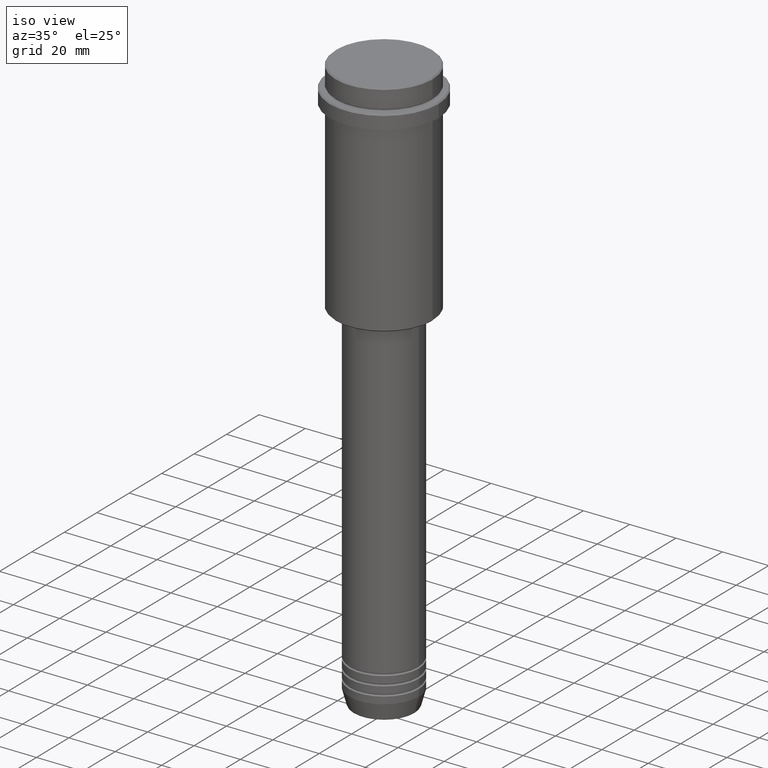
[diagram: clean part render]
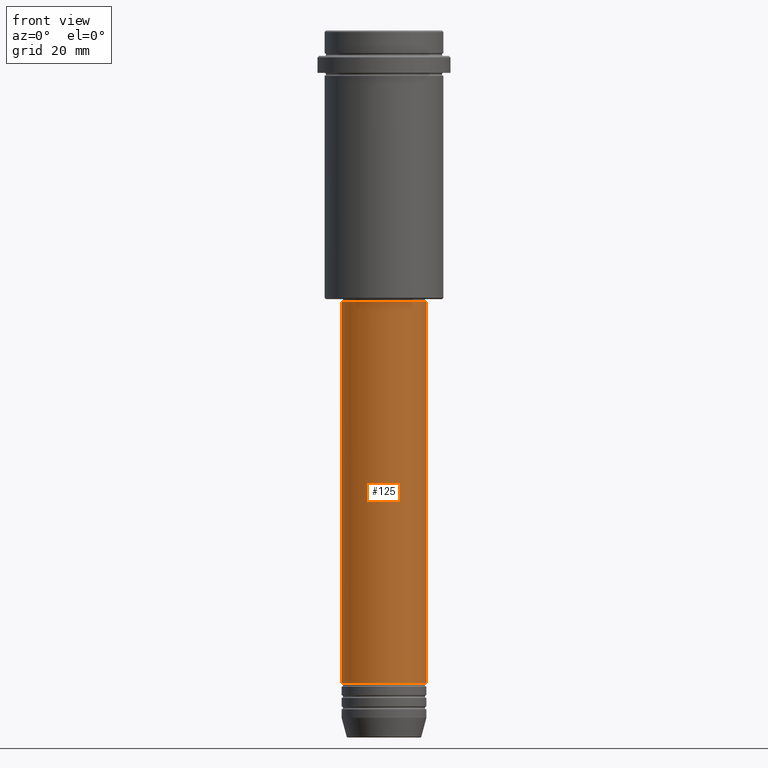
[diagram: tour spotlight — one face highlighted and labeled with its STEP entity id]
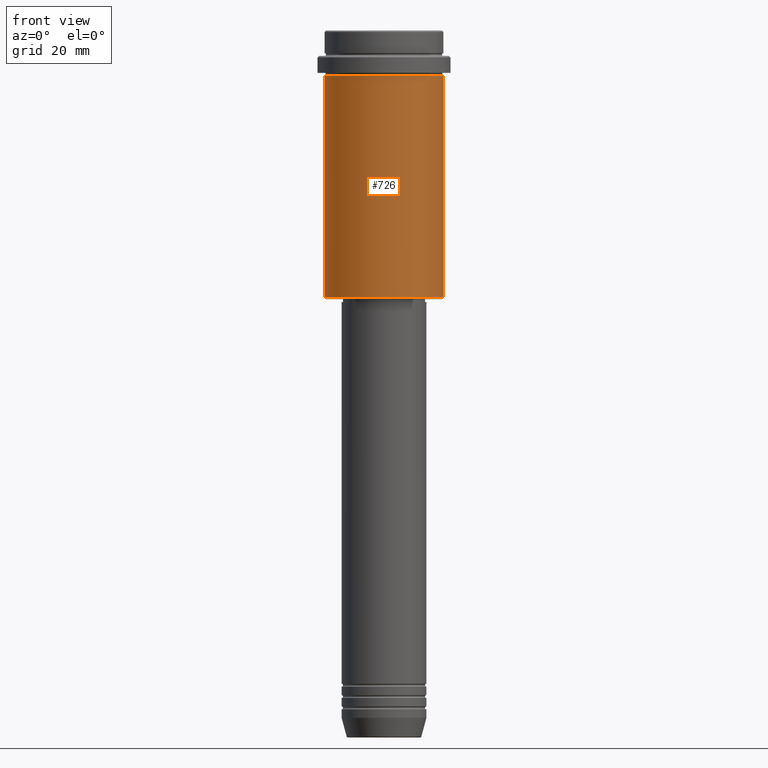
[diagram: tour spotlight — one face highlighted and labeled with its STEP entity id]
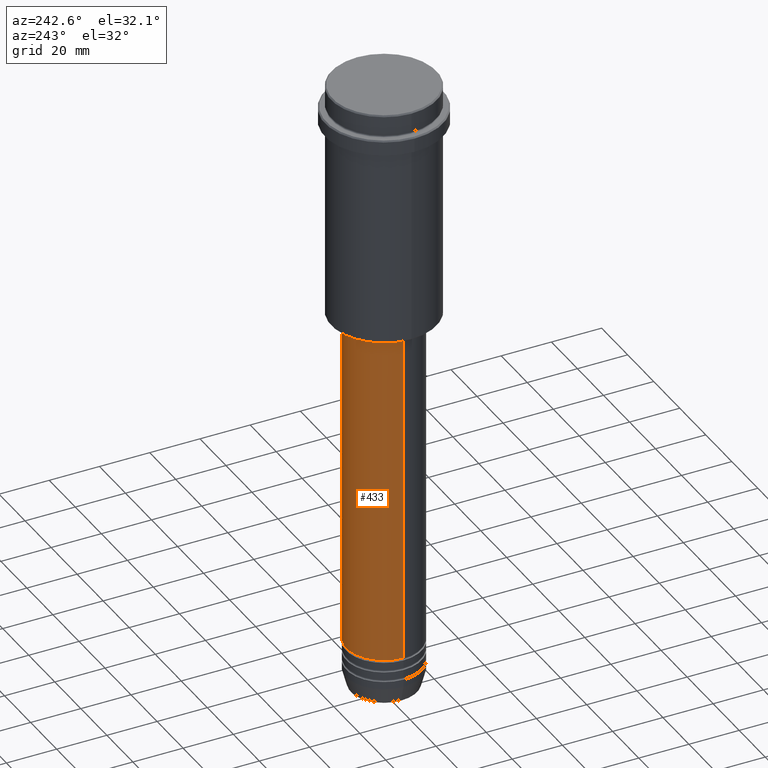
[diagram: tour spotlight — one face highlighted and labeled with its STEP entity id]
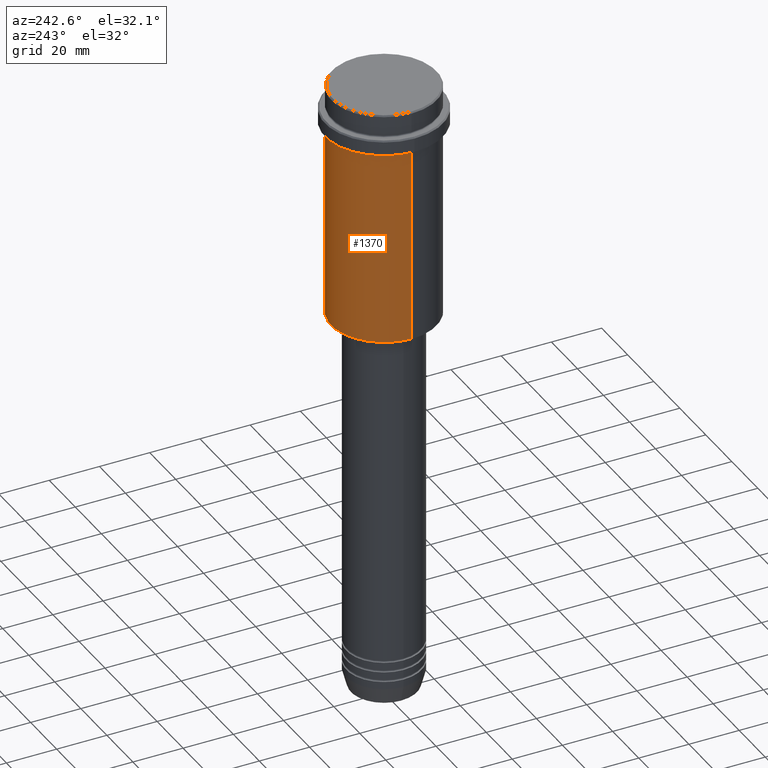
[diagram: tour spotlight — one face highlighted and labeled with its STEP entity id]
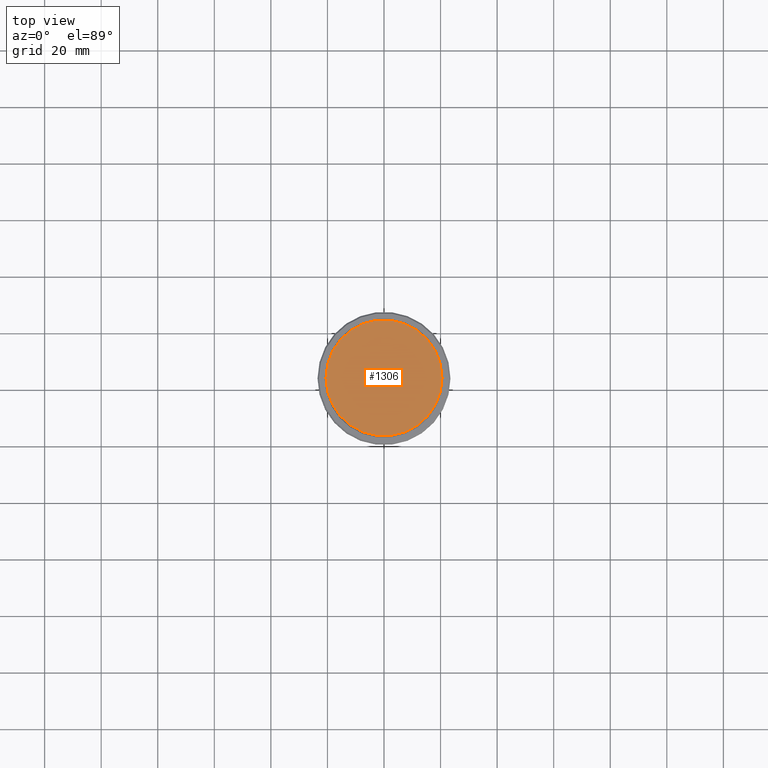
[diagram: tour spotlight — one face highlighted and labeled with its STEP entity id]
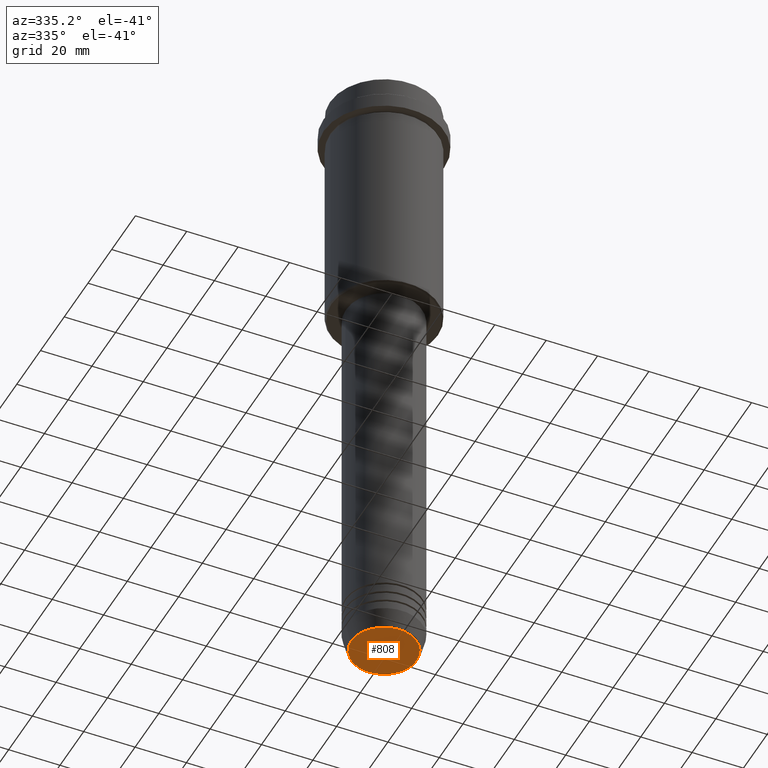
[diagram: tour spotlight — one face highlighted and labeled with its STEP entity id]
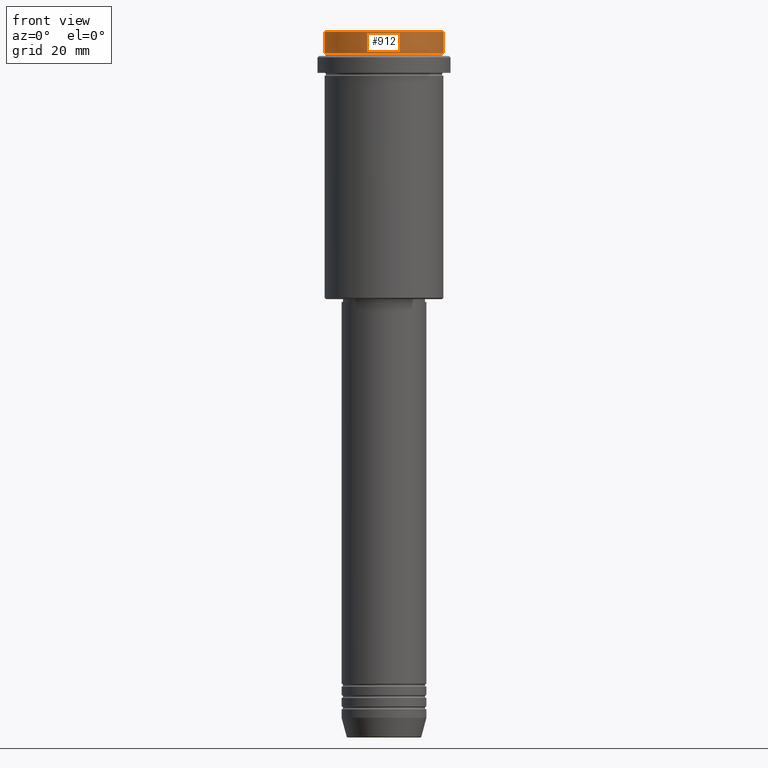
[diagram: tour spotlight — one face highlighted and labeled with its STEP entity id]
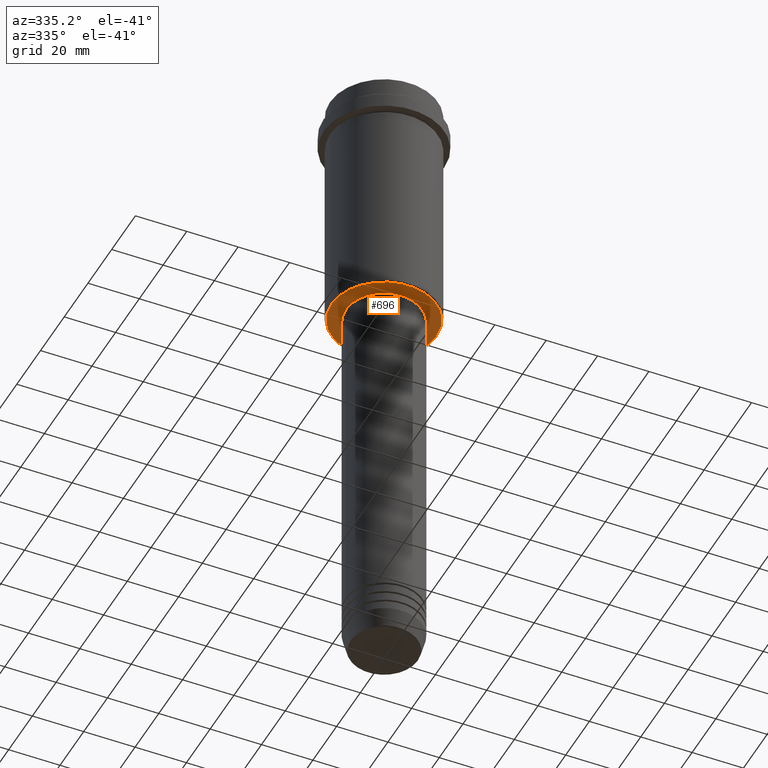
[diagram: tour spotlight — one face highlighted and labeled with its STEP entity id]
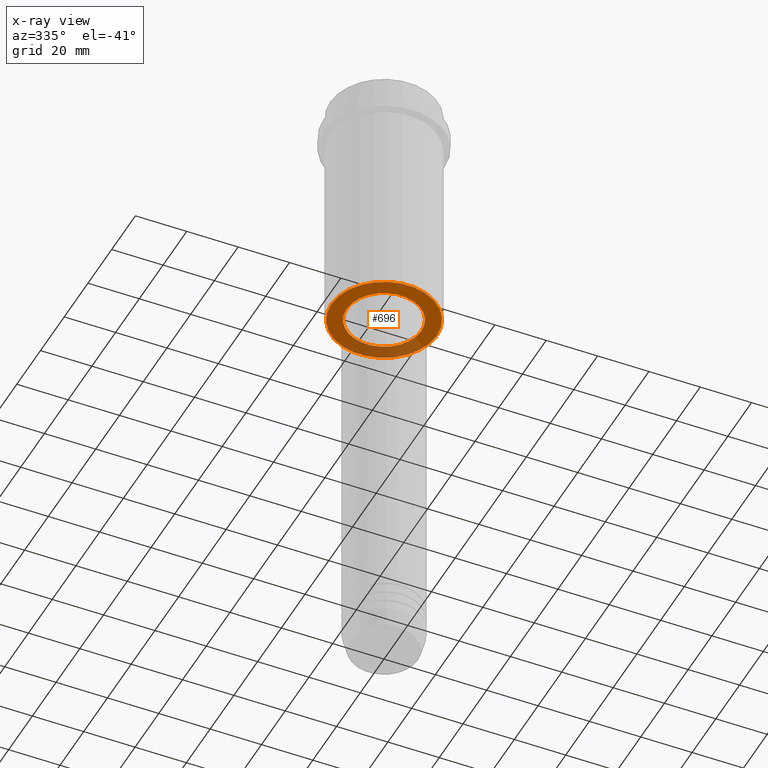
[diagram: x-ray of the same camera — body ghosted, this tour face saturated]
A machine part: a face-by-face anatomy tour. The part has 52 B-rep faces; the first image is the clean iso view, then the 8 largest visible faces are spotlighted one at a time (largest first), each with its STEP entity span.

Face 1 — front view, entity #125. In plain terms, the highlighted cylindrical surface (partial cylindrical patch) has radius 15 mm, axis along (-0, -0, 1).
Definition (entity closure, byte-faithful):
#78 = DIRECTION ( 'NONE',  ( 1.000000000000000000, 0.000000000000000000, 0.000000000000000000 ) ) ;
#125 = ADVANCED_FACE ( 'NONE', ( #136 ), #1014, .T. ) ;
#134 = CARTESIAN_POINT ( 'NONE',  ( -15.00000000000000000, 1.836970198721029589E-15, -230.9999999999998863 ) ) ;
#136 = FACE_OUTER_BOUND ( 'NONE', #680, .T. ) ;
#151 = CARTESIAN_POINT ( 'NONE',  ( -15.00000000000000000, 1.836970198721029589E-15, 0.000000000000000000 ) ) ;
#156 = CARTESIAN_POINT ( 'NONE',  ( 0.000000000000000000, 0.000000000000000000, 0.000000000000000000 ) ) ;
#191 = CARTESIAN_POINT ( 'NONE',  ( 0.000000000000000000, 0.000000000000000000, -96.00000000000000000 ) ) ;
#237 = CARTESIAN_POINT ( 'NONE',  ( -15.00000000000000000, 1.836970198721029589E-15, -96.00000000000000000 ) ) ;
#377 = DIRECTION ( 'NONE',  ( 1.000000000000000000, 0.000000000000000000, 0.000000000000000000 ) ) ;
#382 = DIRECTION ( 'NONE',  ( -0.000000000000000000, -0.000000000000000000, 1.000000000000000000 ) ) ;
#395 = VERTEX_POINT ( 'NONE', #1322 ) ;
#447 = ORIENTED_EDGE ( 'NONE', *, *, #583, .T. ) ;
#464 = ORIENTED_EDGE ( 'NONE', *, *, #1140, .T. ) ;
#472 = LINE ( 'NONE', #151, #597 ) ;
#486 = DIRECTION ( 'NONE',  ( -0.000000000000000000, -0.000000000000000000, 1.000000000000000000 ) ) ;
#494 = CARTESIAN_POINT ( 'NONE',  ( 0.000000000000000000, 0.000000000000000000, -230.9999999999998863 ) ) ;
#507 = CIRCLE ( 'NONE', #600, 15.00000000000000000 ) ;
#521 = VERTEX_POINT ( 'NONE', #237 ) ;
#524 = AXIS2_PLACEMENT_3D ( 'NONE', #156, #1027, #377 ) ;
#560 = ORIENTED_EDGE ( 'NONE', *, *, #572, .F. ) ;
#572 = EDGE_CURVE ( 'NONE', #1000, #521, #472, .T. ) ;
#583 = EDGE_CURVE ( 'NONE', #395, #1152, #1026, .T. ) ;
#585 = DIRECTION ( 'NONE',  ( -0.000000000000000000, -0.000000000000000000, 1.000000000000000000 ) ) ;
#597 = VECTOR ( 'NONE', #585, 1000.000000000000000 ) ;
#600 = AXIS2_PLACEMENT_3D ( 'NONE', #494, #1063, #78 ) ;
#680 = EDGE_LOOP ( 'NONE', ( #560, #464, #447, #891 ) ) ;
#713 = DIRECTION ( 'NONE',  ( 1.000000000000000000, 0.000000000000000000, 0.000000000000000000 ) ) ;
#787 = VECTOR ( 'NONE', #382, 1000.000000000000000 ) ;
#791 = AXIS2_PLACEMENT_3D ( 'NONE', #191, #486, #713 ) ;
#891 = ORIENTED_EDGE ( 'NONE', *, *, #1054, .F. ) ;
#953 = CARTESIAN_POINT ( 'NONE',  ( 15.00000000000000000, 0.000000000000000000, -96.00000000000000000 ) ) ;
#1000 = VERTEX_POINT ( 'NONE', #134 ) ;
#1014 = CYLINDRICAL_SURFACE ( 'NONE', #524, 15.00000000000000000 ) ;
#1026 = LINE ( 'NONE', #1244, #787 ) ;
#1027 = DIRECTION ( 'NONE',  ( -0.000000000000000000, -0.000000000000000000, 1.000000000000000000 ) ) ;
#1054 = EDGE_CURVE ( 'NONE', #521, #1152, #1149, .T. ) ;
#1063 = DIRECTION ( 'NONE',  ( -0.000000000000000000, -0.000000000000000000, 1.000000000000000000 ) ) ;
#1140 = EDGE_CURVE ( 'NONE', #1000, #395, #507, .T. ) ;
#1149 = CIRCLE ( 'NONE', #791, 15.00000000000000000 ) ;
#1152 = VERTEX_POINT ( 'NONE', #953 ) ;
#1244 = CARTESIAN_POINT ( 'NONE',  ( 15.00000000000000000, 0.000000000000000000, 0.000000000000000000 ) ) ;
#1322 = CARTESIAN_POINT ( 'NONE',  ( 15.00000000000000000, 0.000000000000000000, -230.9999999999998863 ) ) ;

Face 2 — front view, entity #726. In plain terms, the highlighted cylindrical surface (partial cylindrical patch) has radius 21 mm, axis along (-0, -0, 1).
Definition (entity closure, byte-faithful):
#18 = CARTESIAN_POINT ( 'NONE',  ( -21.00000000000000000, 2.571758278209441661E-15, -16.00000000000000355 ) ) ;
#75 = CARTESIAN_POINT ( 'NONE',  ( 21.00000000000000000, 0.000000000000000000, -94.49999999999994316 ) ) ;
#95 = VECTOR ( 'NONE', #1313, 1000.000000000000000 ) ;
#96 = CIRCLE ( 'NONE', #501, 21.00000000000000000 ) ;
#138 = ORIENTED_EDGE ( 'NONE', *, *, #1119, .T. ) ;
#214 = CIRCLE ( 'NONE', #325, 21.00000000000000000 ) ;
#217 = CARTESIAN_POINT ( 'NONE',  ( 0.000000000000000000, 0.000000000000000000, 0.000000000000000000 ) ) ;
#224 = VERTEX_POINT ( 'NONE', #75 ) ;
#264 = EDGE_CURVE ( 'NONE', #1379, #958, #96, .T. ) ;
#273 = DIRECTION ( 'NONE',  ( -1.000000000000000000, 0.000000000000000000, 0.000000000000000000 ) ) ;
#279 = AXIS2_PLACEMENT_3D ( 'NONE', #217, #997, #1299 ) ;
#283 = DIRECTION ( 'NONE',  ( -0.000000000000000000, -0.000000000000000000, 1.000000000000000000 ) ) ;
#285 = CARTESIAN_POINT ( 'NONE',  ( -21.00000000000000000, 2.571758278209441661E-15, -94.49999999999994316 ) ) ;
#325 = AXIS2_PLACEMENT_3D ( 'NONE', #1139, #283, #273 ) ;
#358 = CARTESIAN_POINT ( 'NONE',  ( 21.00000000000000000, 0.000000000000000000, -16.00000000000000355 ) ) ;
#496 = DIRECTION ( 'NONE',  ( -0.000000000000000000, -0.000000000000000000, 1.000000000000000000 ) ) ;
#501 = AXIS2_PLACEMENT_3D ( 'NONE', #1375, #963, #850 ) ;
#595 = VERTEX_POINT ( 'NONE', #285 ) ;
#615 = ORIENTED_EDGE ( 'NONE', *, *, #667, .T. ) ;
#663 = CARTESIAN_POINT ( 'NONE',  ( -21.00000000000000000, 2.571758278209441661E-15, 0.000000000000000000 ) ) ;
#667 = EDGE_CURVE ( 'NONE', #224, #958, #725, .T. ) ;
#725 = LINE ( 'NONE', #1175, #809 ) ;
#726 = ADVANCED_FACE ( 'NONE', ( #1366 ), #837, .T. ) ;
#809 = VECTOR ( 'NONE', #496, 1000.000000000000000 ) ;
#818 = EDGE_LOOP ( 'NONE', ( #1191, #138, #615, #1187 ) ) ;
#837 = CYLINDRICAL_SURFACE ( 'NONE', #279, 21.00000000000000000 ) ;
#850 = DIRECTION ( 'NONE',  ( 1.000000000000000000, 0.000000000000000000, 0.000000000000000000 ) ) ;
#958 = VERTEX_POINT ( 'NONE', #358 ) ;
#963 = DIRECTION ( 'NONE',  ( -0.000000000000000000, -0.000000000000000000, 1.000000000000000000 ) ) ;
#997 = DIRECTION ( 'NONE',  ( -0.000000000000000000, -0.000000000000000000, 1.000000000000000000 ) ) ;
#1119 = EDGE_CURVE ( 'NONE', #595, #224, #214, .T. ) ;
#1139 = CARTESIAN_POINT ( 'NONE',  ( 0.000000000000000000, 0.000000000000000000, -94.49999999999994316 ) ) ;
#1175 = CARTESIAN_POINT ( 'NONE',  ( 21.00000000000000000, 0.000000000000000000, 0.000000000000000000 ) ) ;
#1186 = LINE ( 'NONE', #663, #95 ) ;
#1187 = ORIENTED_EDGE ( 'NONE', *, *, #264, .F. ) ;
#1191 = ORIENTED_EDGE ( 'NONE', *, *, #1296, .F. ) ;
#1296 = EDGE_CURVE ( 'NONE', #595, #1379, #1186, .T. ) ;
#1299 = DIRECTION ( 'NONE',  ( 1.000000000000000000, 0.000000000000000000, 0.000000000000000000 ) ) ;
#1313 = DIRECTION ( 'NONE',  ( -0.000000000000000000, -0.000000000000000000, 1.000000000000000000 ) ) ;
#1366 = FACE_OUTER_BOUND ( 'NONE', #818, .T. ) ;
#1375 = CARTESIAN_POINT ( 'NONE',  ( 0.000000000000000000, 0.000000000000000000, -16.00000000000000355 ) ) ;
#1379 = VERTEX_POINT ( 'NONE', #18 ) ;

Face 3 — auxiliary view, entity #433. In plain terms, the highlighted cylindrical surface (partial cylindrical patch) has radius 15 mm, axis along (-0, -0, 1).
Definition (entity closure, byte-faithful):
#25 = DIRECTION ( 'NONE',  ( 1.000000000000000000, 0.000000000000000000, 0.000000000000000000 ) ) ;
#134 = CARTESIAN_POINT ( 'NONE',  ( -15.00000000000000000, 1.836970198721029589E-15, -230.9999999999998863 ) ) ;
#135 = DIRECTION ( 'NONE',  ( -0.000000000000000000, -0.000000000000000000, 1.000000000000000000 ) ) ;
#140 = CIRCLE ( 'NONE', #386, 15.00000000000000000 ) ;
#151 = CARTESIAN_POINT ( 'NONE',  ( -15.00000000000000000, 1.836970198721029589E-15, 0.000000000000000000 ) ) ;
#178 = DIRECTION ( 'NONE',  ( -0.000000000000000000, -0.000000000000000000, 1.000000000000000000 ) ) ;
#201 = EDGE_CURVE ( 'NONE', #395, #1000, #140, .T. ) ;
#237 = CARTESIAN_POINT ( 'NONE',  ( -15.00000000000000000, 1.836970198721029589E-15, -96.00000000000000000 ) ) ;
#333 = CYLINDRICAL_SURFACE ( 'NONE', #743, 15.00000000000000000 ) ;
#382 = DIRECTION ( 'NONE',  ( -0.000000000000000000, -0.000000000000000000, 1.000000000000000000 ) ) ;
#386 = AXIS2_PLACEMENT_3D ( 'NONE', #844, #178, #1387 ) ;
#395 = VERTEX_POINT ( 'NONE', #1322 ) ;
#433 = ADVANCED_FACE ( 'NONE', ( #885 ), #333, .T. ) ;
#472 = LINE ( 'NONE', #151, #597 ) ;
#521 = VERTEX_POINT ( 'NONE', #237 ) ;
#551 = AXIS2_PLACEMENT_3D ( 'NONE', #556, #1344, #582 ) ;
#556 = CARTESIAN_POINT ( 'NONE',  ( 0.000000000000000000, 0.000000000000000000, -96.00000000000000000 ) ) ;
#572 = EDGE_CURVE ( 'NONE', #1000, #521, #472, .T. ) ;
#582 = DIRECTION ( 'NONE',  ( 1.000000000000000000, 0.000000000000000000, 0.000000000000000000 ) ) ;
#583 = EDGE_CURVE ( 'NONE', #395, #1152, #1026, .T. ) ;
#585 = DIRECTION ( 'NONE',  ( -0.000000000000000000, -0.000000000000000000, 1.000000000000000000 ) ) ;
#597 = VECTOR ( 'NONE', #585, 1000.000000000000000 ) ;
#656 = ORIENTED_EDGE ( 'NONE', *, *, #201, .T. ) ;
#685 = CARTESIAN_POINT ( 'NONE',  ( 0.000000000000000000, 0.000000000000000000, 0.000000000000000000 ) ) ;
#743 = AXIS2_PLACEMENT_3D ( 'NONE', #685, #135, #25 ) ;
#787 = VECTOR ( 'NONE', #382, 1000.000000000000000 ) ;
#844 = CARTESIAN_POINT ( 'NONE',  ( 0.000000000000000000, 0.000000000000000000, -230.9999999999998863 ) ) ;
#885 = FACE_OUTER_BOUND ( 'NONE', #1252, .T. ) ;
#921 = CIRCLE ( 'NONE', #551, 15.00000000000000000 ) ;
#953 = CARTESIAN_POINT ( 'NONE',  ( 15.00000000000000000, 0.000000000000000000, -96.00000000000000000 ) ) ;
#1000 = VERTEX_POINT ( 'NONE', #134 ) ;
#1026 = LINE ( 'NONE', #1244, #787 ) ;
#1121 = ORIENTED_EDGE ( 'NONE', *, *, #572, .T. ) ;
#1152 = VERTEX_POINT ( 'NONE', #953 ) ;
#1244 = CARTESIAN_POINT ( 'NONE',  ( 15.00000000000000000, 0.000000000000000000, 0.000000000000000000 ) ) ;
#1252 = EDGE_LOOP ( 'NONE', ( #656, #1121, #1301, #1377 ) ) ;
#1301 = ORIENTED_EDGE ( 'NONE', *, *, #1386, .F. ) ;
#1322 = CARTESIAN_POINT ( 'NONE',  ( 15.00000000000000000, 0.000000000000000000, -230.9999999999998863 ) ) ;
#1344 = DIRECTION ( 'NONE',  ( -0.000000000000000000, -0.000000000000000000, 1.000000000000000000 ) ) ;
#1377 = ORIENTED_EDGE ( 'NONE', *, *, #583, .F. ) ;
#1386 = EDGE_CURVE ( 'NONE', #1152, #521, #921, .T. ) ;
#1387 = DIRECTION ( 'NONE',  ( 1.000000000000000000, 0.000000000000000000, 0.000000000000000000 ) ) ;

Face 4 — auxiliary view, entity #1370. In plain terms, the highlighted cylindrical surface (partial cylindrical patch) has radius 21 mm, axis along (-0, -0, 1).
Definition (entity closure, byte-faithful):
#18 = CARTESIAN_POINT ( 'NONE',  ( -21.00000000000000000, 2.571758278209441661E-15, -16.00000000000000355 ) ) ;
#29 = DIRECTION ( 'NONE',  ( -0.000000000000000000, -0.000000000000000000, 1.000000000000000000 ) ) ;
#46 = EDGE_LOOP ( 'NONE', ( #1329, #976, #1031, #1278 ) ) ;
#75 = CARTESIAN_POINT ( 'NONE',  ( 21.00000000000000000, 0.000000000000000000, -94.49999999999994316 ) ) ;
#87 = EDGE_CURVE ( 'NONE', #958, #1379, #182, .T. ) ;
#95 = VECTOR ( 'NONE', #1313, 1000.000000000000000 ) ;
#182 = CIRCLE ( 'NONE', #985, 21.00000000000000000 ) ;
#224 = VERTEX_POINT ( 'NONE', #75 ) ;
#285 = CARTESIAN_POINT ( 'NONE',  ( -21.00000000000000000, 2.571758278209441661E-15, -94.49999999999994316 ) ) ;
#349 = CARTESIAN_POINT ( 'NONE',  ( 0.000000000000000000, 0.000000000000000000, -16.00000000000000355 ) ) ;
#358 = CARTESIAN_POINT ( 'NONE',  ( 21.00000000000000000, 0.000000000000000000, -16.00000000000000355 ) ) ;
#360 = DIRECTION ( 'NONE',  ( -0.000000000000000000, -0.000000000000000000, 1.000000000000000000 ) ) ;
#371 = DIRECTION ( 'NONE',  ( 1.000000000000000000, 0.000000000000000000, 0.000000000000000000 ) ) ;
#439 = AXIS2_PLACEMENT_3D ( 'NONE', #1389, #975, #981 ) ;
#496 = DIRECTION ( 'NONE',  ( -0.000000000000000000, -0.000000000000000000, 1.000000000000000000 ) ) ;
#561 = DIRECTION ( 'NONE',  ( 1.000000000000000000, 0.000000000000000000, 0.000000000000000000 ) ) ;
#595 = VERTEX_POINT ( 'NONE', #285 ) ;
#649 = AXIS2_PLACEMENT_3D ( 'NONE', #805, #29, #561 ) ;
#663 = CARTESIAN_POINT ( 'NONE',  ( -21.00000000000000000, 2.571758278209441661E-15, 0.000000000000000000 ) ) ;
#667 = EDGE_CURVE ( 'NONE', #224, #958, #725, .T. ) ;
#725 = LINE ( 'NONE', #1175, #809 ) ;
#805 = CARTESIAN_POINT ( 'NONE',  ( 0.000000000000000000, 0.000000000000000000, 0.000000000000000000 ) ) ;
#809 = VECTOR ( 'NONE', #496, 1000.000000000000000 ) ;
#905 = CYLINDRICAL_SURFACE ( 'NONE', #649, 21.00000000000000000 ) ;
#958 = VERTEX_POINT ( 'NONE', #358 ) ;
#975 = DIRECTION ( 'NONE',  ( -0.000000000000000000, -0.000000000000000000, 1.000000000000000000 ) ) ;
#976 = ORIENTED_EDGE ( 'NONE', *, *, #1296, .T. ) ;
#981 = DIRECTION ( 'NONE',  ( -1.000000000000000000, 0.000000000000000000, 0.000000000000000000 ) ) ;
#985 = AXIS2_PLACEMENT_3D ( 'NONE', #349, #360, #371 ) ;
#1031 = ORIENTED_EDGE ( 'NONE', *, *, #87, .F. ) ;
#1175 = CARTESIAN_POINT ( 'NONE',  ( 21.00000000000000000, 0.000000000000000000, 0.000000000000000000 ) ) ;
#1186 = LINE ( 'NONE', #663, #95 ) ;
#1200 = EDGE_CURVE ( 'NONE', #224, #595, #1238, .T. ) ;
#1219 = FACE_OUTER_BOUND ( 'NONE', #46, .T. ) ;
#1238 = CIRCLE ( 'NONE', #439, 21.00000000000000000 ) ;
#1278 = ORIENTED_EDGE ( 'NONE', *, *, #667, .F. ) ;
#1296 = EDGE_CURVE ( 'NONE', #595, #1379, #1186, .T. ) ;
#1313 = DIRECTION ( 'NONE',  ( -0.000000000000000000, -0.000000000000000000, 1.000000000000000000 ) ) ;
#1329 = ORIENTED_EDGE ( 'NONE', *, *, #1200, .T. ) ;
#1370 = ADVANCED_FACE ( 'NONE', ( #1219 ), #905, .T. ) ;
#1379 = VERTEX_POINT ( 'NONE', #18 ) ;
#1389 = CARTESIAN_POINT ( 'NONE',  ( 0.000000000000000000, 0.000000000000000000, -94.49999999999994316 ) ) ;

Face 5 — top view, entity #1306. In plain terms, the highlighted planar face has unit normal (0, -0, 1).
Definition (entity closure, byte-faithful):
#13 = DIRECTION ( 'NONE',  ( -0.000000000000000000, -0.000000000000000000, 1.000000000000000000 ) ) ;
#14 = CARTESIAN_POINT ( 'NONE',  ( 20.50000000000001776, 2.541142108230759057E-15, 0.000000000000000000 ) ) ;
#77 = VERTEX_POINT ( 'NONE', #709 ) ;
#148 = EDGE_CURVE ( 'NONE', #449, #77, #897, .T. ) ;
#197 = CARTESIAN_POINT ( 'NONE',  ( 0.000000000000000000, 0.000000000000000000, 0.000000000000000000 ) ) ;
#260 = DIRECTION ( 'NONE',  ( 1.000000000000000000, 0.000000000000000000, 0.000000000000000000 ) ) ;
#262 = CARTESIAN_POINT ( 'NONE',  ( 0.000000000000000000, 0.000000000000000000, 0.000000000000000000 ) ) ;
#282 = ORIENTED_EDGE ( 'NONE', *, *, #974, .T. ) ;
#449 = VERTEX_POINT ( 'NONE', #14 ) ;
#478 = AXIS2_PLACEMENT_3D ( 'NONE', #1341, #13, #260 ) ;
#575 = CIRCLE ( 'NONE', #478, 20.50000000000001776 ) ;
#661 = EDGE_LOOP ( 'NONE', ( #282, #1286 ) ) ;
#709 = CARTESIAN_POINT ( 'NONE',  ( -20.50000000000001776, 0.000000000000000000, 0.000000000000000000 ) ) ;
#774 = FACE_OUTER_BOUND ( 'NONE', #661, .T. ) ;
#779 = DIRECTION ( 'NONE',  ( 0.000000000000000000, -0.000000000000000000, 1.000000000000000000 ) ) ;
#807 = AXIS2_PLACEMENT_3D ( 'NONE', #262, #1136, #1036 ) ;
#897 = CIRCLE ( 'NONE', #807, 20.50000000000001776 ) ;
#974 = EDGE_CURVE ( 'NONE', #77, #449, #575, .T. ) ;
#1036 = DIRECTION ( 'NONE',  ( 1.000000000000000000, 0.000000000000000000, 0.000000000000000000 ) ) ;
#1136 = DIRECTION ( 'NONE',  ( -0.000000000000000000, -0.000000000000000000, 1.000000000000000000 ) ) ;
#1179 = PLANE ( 'NONE',  #1354 ) ;
#1201 = DIRECTION ( 'NONE',  ( 1.000000000000000000, 0.000000000000000000, 0.000000000000000000 ) ) ;
#1286 = ORIENTED_EDGE ( 'NONE', *, *, #148, .T. ) ;
#1306 = ADVANCED_FACE ( 'NONE', ( #774 ), #1179, .T. ) ;
#1341 = CARTESIAN_POINT ( 'NONE',  ( 0.000000000000000000, 0.000000000000000000, 0.000000000000000000 ) ) ;
#1354 = AXIS2_PLACEMENT_3D ( 'NONE', #197, #779, #1201 ) ;

Face 6 — auxiliary view, entity #808. In plain terms, the highlighted planar face has unit normal (0, -0, 1).
Definition (entity closure, byte-faithful):
#16 = AXIS2_PLACEMENT_3D ( 'NONE', #1223, #797, #1348 ) ;
#47 = EDGE_CURVE ( 'NONE', #554, #1295, #644, .T. ) ;
#203 = ORIENTED_EDGE ( 'NONE', *, *, #47, .T. ) ;
#248 = EDGE_CURVE ( 'NONE', #1295, #554, #1124, .T. ) ;
#255 = CARTESIAN_POINT ( 'NONE',  ( 12.74069215899265828, 0.000000000000000000, -250.0000000000000000 ) ) ;
#331 = CARTESIAN_POINT ( 'NONE',  ( -12.74069215899265828, 1.589857736427681035E-15, -250.0000000000000000 ) ) ;
#406 = CARTESIAN_POINT ( 'NONE',  ( 0.000000000000000000, 0.000000000000000000, -250.0000000000000000 ) ) ;
#432 = DIRECTION ( 'NONE',  ( 0.000000000000000000, -0.000000000000000000, 1.000000000000000000 ) ) ;
#475 = AXIS2_PLACEMENT_3D ( 'NONE', #406, #497, #942 ) ;
#497 = DIRECTION ( 'NONE',  ( 0.000000000000000000, 0.000000000000000000, -1.000000000000000000 ) ) ;
#554 = VERTEX_POINT ( 'NONE', #255 ) ;
#581 = EDGE_LOOP ( 'NONE', ( #203, #821 ) ) ;
#644 = CIRCLE ( 'NONE', #16, 12.74069215899265828 ) ;
#659 = DIRECTION ( 'NONE',  ( 1.000000000000000000, 0.000000000000000000, 0.000000000000000000 ) ) ;
#797 = DIRECTION ( 'NONE',  ( 0.000000000000000000, 0.000000000000000000, -1.000000000000000000 ) ) ;
#808 = ADVANCED_FACE ( 'NONE', ( #1098 ), #1076, .F. ) ;
#821 = ORIENTED_EDGE ( 'NONE', *, *, #248, .T. ) ;
#942 = DIRECTION ( 'NONE',  ( 1.000000000000000000, 0.000000000000000000, 0.000000000000000000 ) ) ;
#991 = AXIS2_PLACEMENT_3D ( 'NONE', #1412, #432, #659 ) ;
#1076 = PLANE ( 'NONE',  #991 ) ;
#1098 = FACE_OUTER_BOUND ( 'NONE', #581, .T. ) ;
#1124 = CIRCLE ( 'NONE', #475, 12.74069215899265828 ) ;
#1223 = CARTESIAN_POINT ( 'NONE',  ( 0.000000000000000000, 0.000000000000000000, -250.0000000000000000 ) ) ;
#1295 = VERTEX_POINT ( 'NONE', #331 ) ;
#1348 = DIRECTION ( 'NONE',  ( 1.000000000000000000, 0.000000000000000000, 0.000000000000000000 ) ) ;
#1412 = CARTESIAN_POINT ( 'NONE',  ( 0.000000000000000000, 0.000000000000000000, -250.0000000000000000 ) ) ;

Face 7 — front view, entity #912. In plain terms, the highlighted cylindrical surface (partial cylindrical patch) has radius 21 mm, axis along (-0, -0, 1).
Definition (entity closure, byte-faithful):
#97 = VECTOR ( 'NONE', #682, 1000.000000000000000 ) ;
#177 = CARTESIAN_POINT ( 'NONE',  ( -21.00000000000000000, 2.571758278209441661E-15, -0.4999999999999553690 ) ) ;
#212 = ORIENTED_EDGE ( 'NONE', *, *, #1363, .F. ) ;
#251 = ORIENTED_EDGE ( 'NONE', *, *, #918, .T. ) ;
#344 = AXIS2_PLACEMENT_3D ( 'NONE', #707, #1025, #1030 ) ;
#347 = FACE_OUTER_BOUND ( 'NONE', #1090, .T. ) ;
#350 = VERTEX_POINT ( 'NONE', #762 ) ;
#420 = DIRECTION ( 'NONE',  ( 1.000000000000000000, 0.000000000000000000, 0.000000000000000000 ) ) ;
#429 = VERTEX_POINT ( 'NONE', #435 ) ;
#435 = CARTESIAN_POINT ( 'NONE',  ( 21.00000000000000000, 0.000000000000000000, -7.999999999999998224 ) ) ;
#462 = CARTESIAN_POINT ( 'NONE',  ( 0.000000000000000000, 0.000000000000000000, -7.999999999999998224 ) ) ;
#465 = CARTESIAN_POINT ( 'NONE',  ( -21.00000000000000000, 2.571758278209441661E-15, 0.000000000000000000 ) ) ;
#529 = AXIS2_PLACEMENT_3D ( 'NONE', #462, #1002, #889 ) ;
#553 = CIRCLE ( 'NONE', #1287, 21.00000000000000000 ) ;
#635 = ORIENTED_EDGE ( 'NONE', *, *, #1161, .T. ) ;
#676 = VERTEX_POINT ( 'NONE', #177 ) ;
#682 = DIRECTION ( 'NONE',  ( -0.000000000000000000, -0.000000000000000000, 1.000000000000000000 ) ) ;
#707 = CARTESIAN_POINT ( 'NONE',  ( 0.000000000000000000, 0.000000000000000000, 0.000000000000000000 ) ) ;
#762 = CARTESIAN_POINT ( 'NONE',  ( -21.00000000000000000, 2.571758278209441661E-15, -7.999999999999998224 ) ) ;
#764 = CARTESIAN_POINT ( 'NONE',  ( 21.00000000000000000, 0.000000000000000000, -0.4999999999999553690 ) ) ;
#780 = CARTESIAN_POINT ( 'NONE',  ( 0.000000000000000000, 0.000000000000000000, -0.4999999999999553690 ) ) ;
#814 = CYLINDRICAL_SURFACE ( 'NONE', #344, 21.00000000000000000 ) ;
#833 = LINE ( 'NONE', #1267, #1289 ) ;
#846 = DIRECTION ( 'NONE',  ( -0.000000000000000000, -0.000000000000000000, 1.000000000000000000 ) ) ;
#863 = EDGE_CURVE ( 'NONE', #1241, #676, #553, .T. ) ;
#889 = DIRECTION ( 'NONE',  ( 1.000000000000000000, 0.000000000000000000, 0.000000000000000000 ) ) ;
#912 = ADVANCED_FACE ( 'NONE', ( #347 ), #814, .T. ) ;
#918 = EDGE_CURVE ( 'NONE', #350, #429, #1237, .T. ) ;
#1002 = DIRECTION ( 'NONE',  ( -0.000000000000000000, -0.000000000000000000, 1.000000000000000000 ) ) ;
#1018 = LINE ( 'NONE', #465, #97 ) ;
#1025 = DIRECTION ( 'NONE',  ( -0.000000000000000000, -0.000000000000000000, 1.000000000000000000 ) ) ;
#1030 = DIRECTION ( 'NONE',  ( 1.000000000000000000, 0.000000000000000000, 0.000000000000000000 ) ) ;
#1090 = EDGE_LOOP ( 'NONE', ( #212, #251, #635, #1258 ) ) ;
#1161 = EDGE_CURVE ( 'NONE', #429, #1241, #833, .T. ) ;
#1206 = DIRECTION ( 'NONE',  ( 0.000000000000000000, 0.000000000000000000, -1.000000000000000000 ) ) ;
#1237 = CIRCLE ( 'NONE', #529, 21.00000000000000000 ) ;
#1241 = VERTEX_POINT ( 'NONE', #764 ) ;
#1258 = ORIENTED_EDGE ( 'NONE', *, *, #863, .T. ) ;
#1267 = CARTESIAN_POINT ( 'NONE',  ( 21.00000000000000000, 0.000000000000000000, 0.000000000000000000 ) ) ;
#1287 = AXIS2_PLACEMENT_3D ( 'NONE', #780, #1206, #420 ) ;
#1289 = VECTOR ( 'NONE', #846, 1000.000000000000000 ) ;
#1363 = EDGE_CURVE ( 'NONE', #350, #676, #1018, .T. ) ;

Face 8 — auxiliary view, entity #696. An x-ray twin of the same camera follows (body ghosted, this face saturated) — the face is partly hidden behind the body. In plain terms, the highlighted planar face has unit normal (0, 0, -1).
Definition (entity closure, byte-faithful):
#17 = VERTEX_POINT ( 'NONE', #902 ) ;
#35 = CARTESIAN_POINT ( 'NONE',  ( 20.49999999999996447, 0.000000000000000000, -95.00000000000000000 ) ) ;
#50 = CIRCLE ( 'NONE', #723, 20.49999999999996447 ) ;
#67 = CARTESIAN_POINT ( 'NONE',  ( -14.49999999999999467, 1.775737858763661620E-15, -95.00000000000000000 ) ) ;
#70 = DIRECTION ( 'NONE',  ( -1.000000000000000000, 0.000000000000000000, -0.000000000000000000 ) ) ;
#72 = CIRCLE ( 'NONE', #1285, 14.49999999999999467 ) ;
#184 = DIRECTION ( 'NONE',  ( 1.000000000000000000, 0.000000000000000000, 0.000000000000000000 ) ) ;
#211 = AXIS2_PLACEMENT_3D ( 'NONE', #849, #404, #70 ) ;
#265 = DIRECTION ( 'NONE',  ( -1.000000000000000000, 0.000000000000000000, 0.000000000000000000 ) ) ;
#296 = CIRCLE ( 'NONE', #853, 14.49999999999999467 ) ;
#317 = ORIENTED_EDGE ( 'NONE', *, *, #379, .T. ) ;
#379 = EDGE_CURVE ( 'NONE', #17, #1100, #296, .T. ) ;
#404 = DIRECTION ( 'NONE',  ( 0.000000000000000000, 0.000000000000000000, -1.000000000000000000 ) ) ;
#416 = EDGE_LOOP ( 'NONE', ( #730, #798 ) ) ;
#522 = DIRECTION ( 'NONE',  ( 0.000000000000000000, 0.000000000000000000, -1.000000000000000000 ) ) ;
#589 = EDGE_CURVE ( 'NONE', #1100, #17, #72, .T. ) ;
#608 = CARTESIAN_POINT ( 'NONE',  ( -20.49999999999996447, 2.541142108230755902E-15, -95.00000000000000000 ) ) ;
#622 = CARTESIAN_POINT ( 'NONE',  ( 0.000000000000000000, 0.000000000000000000, -95.00000000000000000 ) ) ;
#660 = CARTESIAN_POINT ( 'NONE',  ( 0.000000000000000000, 0.000000000000000000, -95.00000000000000000 ) ) ;
#696 = ADVANCED_FACE ( 'NONE', ( #1373, #1153 ), #1385, .T. ) ;
#723 = AXIS2_PLACEMENT_3D ( 'NONE', #622, #1383, #265 ) ;
#730 = ORIENTED_EDGE ( 'NONE', *, *, #1189, .T. ) ;
#781 = DIRECTION ( 'NONE',  ( 1.000000000000000000, 0.000000000000000000, 0.000000000000000000 ) ) ;
#798 = ORIENTED_EDGE ( 'NONE', *, *, #1103, .T. ) ;
#849 = CARTESIAN_POINT ( 'NONE',  ( 0.000000000000000000, 21.00000000000000000, -95.00000000000000000 ) ) ;
#853 = AXIS2_PLACEMENT_3D ( 'NONE', #660, #890, #781 ) ;
#890 = DIRECTION ( 'NONE',  ( -0.000000000000000000, -0.000000000000000000, 1.000000000000000000 ) ) ;
#902 = CARTESIAN_POINT ( 'NONE',  ( 14.49999999999999467, 0.000000000000000000, -95.00000000000000000 ) ) ;
#986 = DIRECTION ( 'NONE',  ( -1.000000000000000000, 0.000000000000000000, 0.000000000000000000 ) ) ;
#1048 = CARTESIAN_POINT ( 'NONE',  ( 0.000000000000000000, 0.000000000000000000, -95.00000000000000000 ) ) ;
#1060 = EDGE_LOOP ( 'NONE', ( #317, #1208 ) ) ;
#1100 = VERTEX_POINT ( 'NONE', #67 ) ;
#1103 = EDGE_CURVE ( 'NONE', #1185, #1409, #50, .T. ) ;
#1107 = CIRCLE ( 'NONE', #1260, 20.49999999999996447 ) ;
#1153 = FACE_BOUND ( 'NONE', #1060, .T. ) ;
#1159 = DIRECTION ( 'NONE',  ( -0.000000000000000000, -0.000000000000000000, 1.000000000000000000 ) ) ;
#1165 = CARTESIAN_POINT ( 'NONE',  ( 0.000000000000000000, 0.000000000000000000, -95.00000000000000000 ) ) ;
#1185 = VERTEX_POINT ( 'NONE', #608 ) ;
#1189 = EDGE_CURVE ( 'NONE', #1409, #1185, #1107, .T. ) ;
#1208 = ORIENTED_EDGE ( 'NONE', *, *, #589, .T. ) ;
#1260 = AXIS2_PLACEMENT_3D ( 'NONE', #1048, #522, #986 ) ;
#1285 = AXIS2_PLACEMENT_3D ( 'NONE', #1165, #1159, #184 ) ;
#1373 = FACE_OUTER_BOUND ( 'NONE', #416, .T. ) ;
#1383 = DIRECTION ( 'NONE',  ( 0.000000000000000000, 0.000000000000000000, -1.000000000000000000 ) ) ;
#1385 = PLANE ( 'NONE',  #211 ) ;
#1409 = VERTEX_POINT ( 'NONE', #35 ) ;